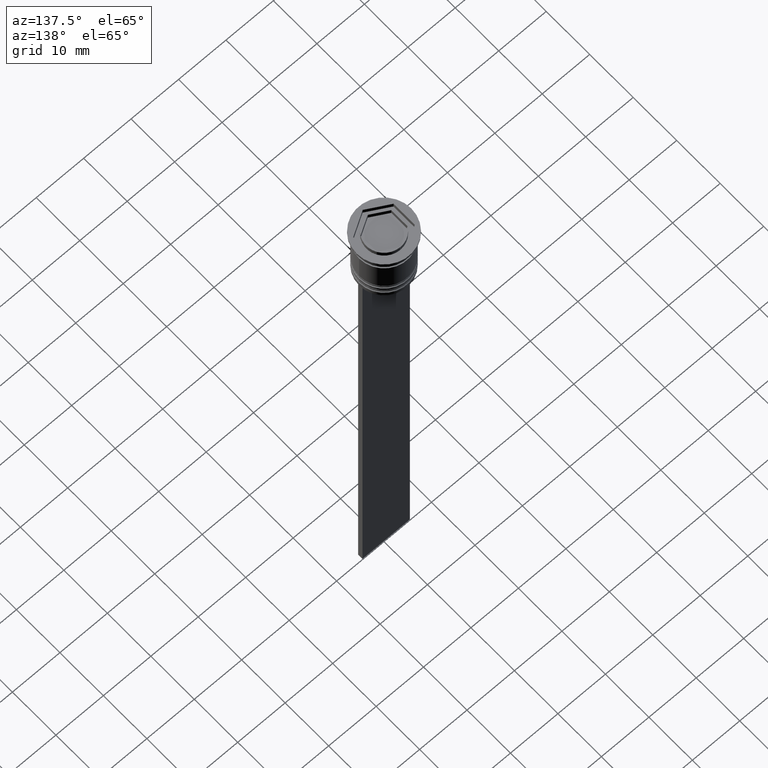
[diagram: clean part render]
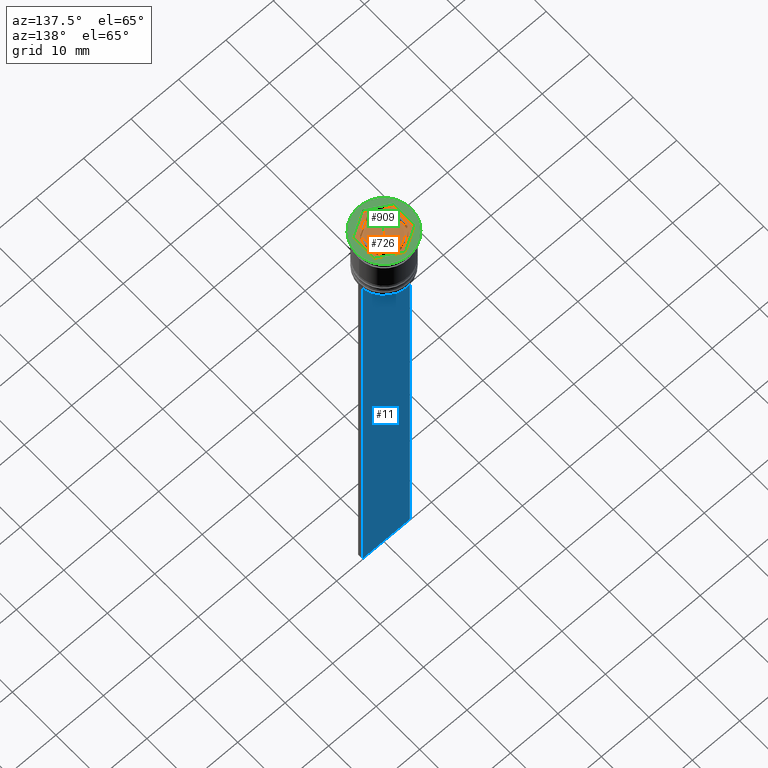
[diagram: same view with three faces highlighted in distinct colors, each labeled with its STEP entity id]
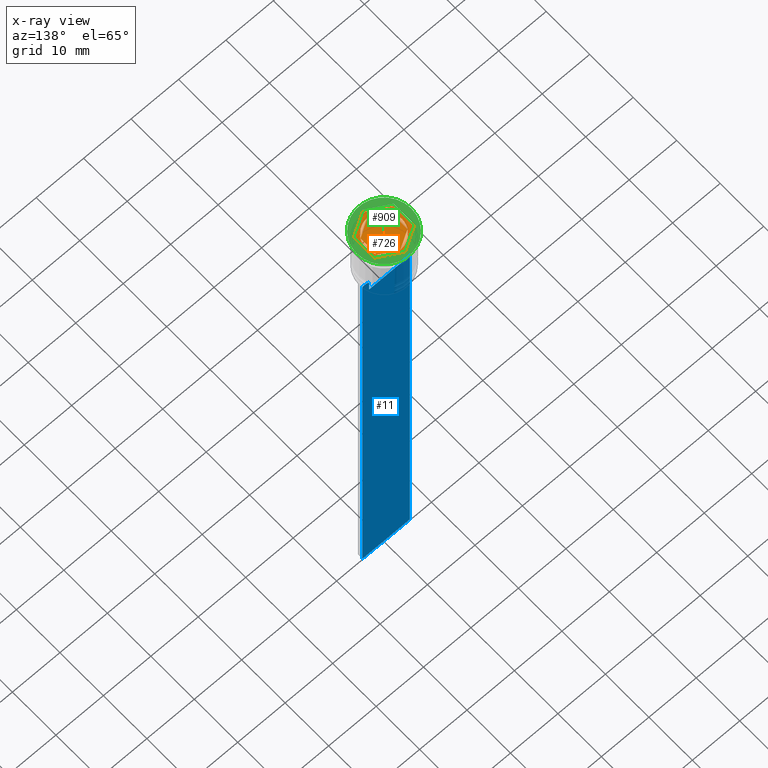
[diagram: x-ray of the same camera — body ghosted, the three highlighted faces saturated]
A machine part, auxiliary view with three faces highlighted in distinct colors.
The next image is the same camera in x-ray (body ghosted, the three faces saturated) — at least one of them is partly hidden behind the body in this view.
Their STEP definitions:

[orange] entity #726 — the highlighted planar face has unit normal (0, 0, 1).
#23 = ORIENTED_EDGE ( 'NONE', *, *, #2035, .F. ) ;
#24 = EDGE_CURVE ( 'NONE', #973, #1412, #470, .T. ) ;
#29 = LINE ( 'NONE', #361, #1232 ) ;
#39 = LINE ( 'NONE', #789, #2261 ) ;
#45 = ORIENTED_EDGE ( 'NONE', *, *, #507, .F. ) ;
#49 = VERTEX_POINT ( 'NONE', #1525 ) ;
#58 = ORIENTED_EDGE ( 'NONE', *, *, #247, .F. ) ;
#63 = AXIS2_PLACEMENT_3D ( 'NONE', #916, #370, #878 ) ;
#112 = VECTOR ( 'NONE', #2048, 1000.000000000000000 ) ;
#132 = DIRECTION ( 'NONE',  ( 1.000000000000000000, 0.000000000000000000, 0.000000000000000000 ) ) ;
#133 = EDGE_CURVE ( 'NONE', #315, #1789, #896, .T. ) ;
#166 = EDGE_CURVE ( 'NONE', #1122, #671, #698, .T. ) ;
#178 = DIRECTION ( 'NONE',  ( 1.000000000000000000, 0.000000000000000000, 0.000000000000000000 ) ) ;
#185 = EDGE_CURVE ( 'NONE', #1422, #49, #29, .T. ) ;
#203 = DIRECTION ( 'NONE',  ( -0.8660254037844385966, -0.4999999999999999445, 0.000000000000000000 ) ) ;
#210 = VERTEX_POINT ( 'NONE', #963 ) ;
#211 = FACE_BOUND ( 'NONE', #679, .T. ) ;
#212 = CIRCLE ( 'NONE', #2030, 3.750000000000000888 ) ;
#234 = CARTESIAN_POINT ( 'NONE',  ( 4.250000000000000000, 2.453738644055909912, -1.000000000000000000 ) ) ;
#240 = ORIENTED_EDGE ( 'NONE', *, *, #166, .F. ) ;
#247 = EDGE_CURVE ( 'NONE', #605, #1638, #212, .T. ) ;
#271 = ORIENTED_EDGE ( 'NONE', *, *, #185, .T. ) ;
#272 = LINE ( 'NONE', #1922, #1315 ) ;
#315 = VERTEX_POINT ( 'NONE', #627 ) ;
#345 = DIRECTION ( 'NONE',  ( 0.8660254037844385966, 0.5000000000000001110, 0.000000000000000000 ) ) ;
#361 = CARTESIAN_POINT ( 'NONE',  ( -4.250000000000000000, -2.453738644055909912, -1.000000000000000000 ) ) ;
#363 = CARTESIAN_POINT ( 'NONE',  ( 0.000000000000000000, 0.000000000000000000, -1.000000000000000000 ) ) ;
#370 = DIRECTION ( 'NONE',  ( 0.000000000000000000, 0.000000000000000000, 1.000000000000000000 ) ) ;
#398 = EDGE_CURVE ( 'NONE', #403, #956, #2086, .T. ) ;
#403 = VERTEX_POINT ( 'NONE', #467 ) ;
#436 = CARTESIAN_POINT ( 'NONE',  ( 0.000000000000000000, 0.000000000000000000, -1.000000000000000000 ) ) ;
#467 = CARTESIAN_POINT ( 'NONE',  ( 3.250000000000001332, 1.870828693386969777, -1.000000000000000888 ) ) ;
#468 = CARTESIAN_POINT ( 'NONE',  ( 0.000000000000000000, 0.000000000000000000, -1.000000000000000000 ) ) ;
#470 = LINE ( 'NONE', #2277, #1921 ) ;
#483 = CIRCLE ( 'NONE', #63, 3.750000000000000888 ) ;
#507 = EDGE_CURVE ( 'NONE', #659, #1669, #483, .T. ) ;
#516 = ORIENTED_EDGE ( 'NONE', *, *, #1251, .F. ) ;
#534 = CARTESIAN_POINT ( 'NONE',  ( -3.750000000000000888, 0.000000000000000000, -1.000000000000000000 ) ) ;
#555 = CARTESIAN_POINT ( 'NONE',  ( -4.250000000000000000, -2.453738644055909912, -1.000000000000000000 ) ) ;
#583 = DIRECTION ( 'NONE',  ( 1.000000000000000000, 0.000000000000000000, -0.000000000000000000 ) ) ;
#585 = CARTESIAN_POINT ( 'NONE',  ( -4.250000000000000000, 2.453738644055909468, -1.000000000000000000 ) ) ;
#603 = AXIS2_PLACEMENT_3D ( 'NONE', #972, #795, #178 ) ;
#605 = VERTEX_POINT ( 'NONE', #1649 ) ;
#627 = CARTESIAN_POINT ( 'NONE',  ( 0.000000000000000000, 4.907477288111818936, -1.000000000000000000 ) ) ;
#628 = DIRECTION ( 'NONE',  ( 0.8660254037844385966, 0.5000000000000001110, -0.000000000000000000 ) ) ;
#653 = EDGE_CURVE ( 'NONE', #1137, #315, #2253, .T. ) ;
#659 = VERTEX_POINT ( 'NONE', #1147 ) ;
#662 = ORIENTED_EDGE ( 'NONE', *, *, #398, .F. ) ;
#671 = VERTEX_POINT ( 'NONE', #1495 ) ;
#675 = EDGE_CURVE ( 'NONE', #1789, #1422, #39, .T. ) ;
#679 = EDGE_LOOP ( 'NONE', ( #58, #2089 ) ) ;
#692 = LINE ( 'NONE', #1790, #2225 ) ;
#698 = LINE ( 'NONE', #1270, #1690 ) ;
#716 = CARTESIAN_POINT ( 'NONE',  ( 3.249999999999999556, -1.870828693386972885, -1.000000000000000888 ) ) ;
#724 = CARTESIAN_POINT ( 'NONE',  ( -0.004814825398034979984, 3.749996908992911937, -1.000000000000000888 ) ) ;
#726 = ADVANCED_FACE ( 'NONE', ( #211, #1111, #927, #2219, #1661, #765, #1138 ), #755, .T. ) ;
#727 = ORIENTED_EDGE ( 'NONE', *, *, #2011, .F. ) ;
#754 = ORIENTED_EDGE ( 'NONE', *, *, #2155, .F. ) ;
#755 = PLANE ( 'NONE',  #2144 ) ;
#765 = FACE_BOUND ( 'NONE', #1725, .T. ) ;
#789 = CARTESIAN_POINT ( 'NONE',  ( -4.250000000000000000, 2.453738644055909468, -1.000000000000000000 ) ) ;
#795 = DIRECTION ( 'NONE',  ( 0.000000000000000000, 0.000000000000000000, 1.000000000000000000 ) ) ;
#808 = DIRECTION ( 'NONE',  ( -4.622506457652797323E-16, -1.000000000000000000, 0.000000000000000000 ) ) ;
#832 = CARTESIAN_POINT ( 'NONE',  ( 3.249999999999999556, -1.876388374866284403, -1.000000000000000888 ) ) ;
#841 = CARTESIAN_POINT ( 'NONE',  ( 3.245185174601965983, -1.879168215605940606, -1.000000000000000888 ) ) ;
#848 = DIRECTION ( 'NONE',  ( 0.000000000000000000, 0.000000000000000000, 1.000000000000000000 ) ) ;
#878 = DIRECTION ( 'NONE',  ( 1.000000000000000000, 0.000000000000000000, 0.000000000000000000 ) ) ;
#893 = CARTESIAN_POINT ( 'NONE',  ( 4.250000000000000000, -2.453738644055909912, -1.000000000000000000 ) ) ;
#895 = CIRCLE ( 'NONE', #603, 3.750000000000000888 ) ;
#896 = LINE ( 'NONE', #1650, #1193 ) ;
#916 = CARTESIAN_POINT ( 'NONE',  ( 0.000000000000000000, 0.000000000000000000, -1.000000000000000000 ) ) ;
#917 = ORIENTED_EDGE ( 'NONE', *, *, #675, .T. ) ;
#927 = FACE_BOUND ( 'NONE', #2202, .T. ) ;
#928 = CIRCLE ( 'NONE', #1811, 3.750000000000000888 ) ;
#945 = CARTESIAN_POINT ( 'NONE',  ( 0.000000000000000000, 0.000000000000000000, -1.000000000000000000 ) ) ;
#953 = CARTESIAN_POINT ( 'NONE',  ( -3.250000000000000444, 1.876388374866283515, -1.000000000000000888 ) ) ;
#954 = EDGE_CURVE ( 'NONE', #49, #1779, #692, .T. ) ;
#956 = VERTEX_POINT ( 'NONE', #716 ) ;
#963 = CARTESIAN_POINT ( 'NONE',  ( -3.245185174601965983, 1.879168215605940384, -1.000000000000000888 ) ) ;
#964 = DIRECTION ( 'NONE',  ( 0.000000000000000000, 0.000000000000000000, 1.000000000000000000 ) ) ;
#970 = ORIENTED_EDGE ( 'NONE', *, *, #2286, .F. ) ;
#972 = CARTESIAN_POINT ( 'NONE',  ( 0.000000000000000000, 0.000000000000000000, -1.000000000000000000 ) ) ;
#973 = VERTEX_POINT ( 'NONE', #1407 ) ;
#1010 = CARTESIAN_POINT ( 'NONE',  ( 4.250000000000000000, 2.453738644055909912, -1.000000000000000000 ) ) ;
#1023 = DIRECTION ( 'NONE',  ( 0.8660254037844387076, -0.4999999999999998890, 0.000000000000000000 ) ) ;
#1039 = VECTOR ( 'NONE', #808, 1000.000000000000000 ) ;
#1043 = EDGE_CURVE ( 'NONE', #1638, #605, #272, .T. ) ;
#1111 = FACE_BOUND ( 'NONE', #1978, .T. ) ;
#1122 = VERTEX_POINT ( 'NONE', #841 ) ;
#1126 = CARTESIAN_POINT ( 'NONE',  ( 0.000000000000000000, 0.000000000000000000, -1.000000000000000000 ) ) ;
#1137 = VERTEX_POINT ( 'NONE', #1010 ) ;
#1138 = FACE_OUTER_BOUND ( 'NONE', #1541, .T. ) ;
#1147 = CARTESIAN_POINT ( 'NONE',  ( -3.250000000000000444, 1.870828693386971331, -1.000000000000000888 ) ) ;
#1193 = VECTOR ( 'NONE', #1796, 999.9999999999998863 ) ;
#1210 = CARTESIAN_POINT ( 'NONE',  ( 0.000000000000000000, 0.000000000000000000, -1.000000000000000000 ) ) ;
#1232 = VECTOR ( 'NONE', #1993, 1000.000000000000000 ) ;
#1244 = DIRECTION ( 'NONE',  ( 0.000000000000000000, 0.000000000000000000, 1.000000000000000000 ) ) ;
#1251 = EDGE_CURVE ( 'NONE', #956, #403, #928, .T. ) ;
#1270 = CARTESIAN_POINT ( 'NONE',  ( -2.168404344971008868E-16, -3.752776749732567474, -1.000000000000000888 ) ) ;
#1281 = VERTEX_POINT ( 'NONE', #724 ) ;
#1315 = VECTOR ( 'NONE', #1023, 1000.000000000000000 ) ;
#1319 = DIRECTION ( 'NONE',  ( 0.000000000000000000, 0.000000000000000000, 1.000000000000000000 ) ) ;
#1345 = EDGE_LOOP ( 'NONE', ( #1434, #1517 ) ) ;
#1407 = CARTESIAN_POINT ( 'NONE',  ( -0.004814825398034979984, -3.749996908992911937, -1.000000000000000888 ) ) ;
#1412 = VERTEX_POINT ( 'NONE', #2031 ) ;
#1422 = VERTEX_POINT ( 'NONE', #555 ) ;
#1434 = ORIENTED_EDGE ( 'NONE', *, *, #1822, .F. ) ;
#1459 = VERTEX_POINT ( 'NONE', #1747 ) ;
#1484 = DIRECTION ( 'NONE',  ( 0.000000000000000000, -1.000000000000000000, 0.000000000000000000 ) ) ;
#1495 = CARTESIAN_POINT ( 'NONE',  ( 0.004814825398034546303, -3.749996908992911493, -1.000000000000000888 ) ) ;
#1517 = ORIENTED_EDGE ( 'NONE', *, *, #24, .F. ) ;
#1525 = CARTESIAN_POINT ( 'NONE',  ( 4.392932287340942424E-16, -4.907477288111819824, -1.000000000000000000 ) ) ;
#1532 = LINE ( 'NONE', #2257, #1551 ) ;
#1541 = EDGE_LOOP ( 'NONE', ( #1781, #1610, #917, #271, #1579, #1799 ) ) ;
#1549 = CIRCLE ( 'NONE', #2344, 3.750000000000000888 ) ;
#1551 = VECTOR ( 'NONE', #628, 1000.000000000000114 ) ;
#1560 = DIRECTION ( 'NONE',  ( -0.8660254037844385966, 0.5000000000000001110, 0.000000000000000000 ) ) ;
#1579 = ORIENTED_EDGE ( 'NONE', *, *, #954, .T. ) ;
#1610 = ORIENTED_EDGE ( 'NONE', *, *, #133, .T. ) ;
#1633 = DIRECTION ( 'NONE',  ( 0.000000000000000000, 0.000000000000000000, 1.000000000000000000 ) ) ;
#1638 = VERTEX_POINT ( 'NONE', #2165 ) ;
#1649 = CARTESIAN_POINT ( 'NONE',  ( 3.245185174601965095, 1.879168215605940828, -1.000000000000000888 ) ) ;
#1650 = CARTESIAN_POINT ( 'NONE',  ( 0.000000000000000000, 4.907477288111818936, -1.000000000000000000 ) ) ;
#1661 = FACE_BOUND ( 'NONE', #1775, .T. ) ;
#1662 = CIRCLE ( 'NONE', #2271, 3.750000000000000888 ) ;
#1669 = VERTEX_POINT ( 'NONE', #534 ) ;
#1686 = DIRECTION ( 'NONE',  ( 0.000000000000000000, 1.000000000000000000, 0.000000000000000000 ) ) ;
#1690 = VECTOR ( 'NONE', #203, 1000.000000000000114 ) ;
#1698 = DIRECTION ( 'NONE',  ( 1.000000000000000000, 0.000000000000000000, 0.000000000000000000 ) ) ;
#1704 = LINE ( 'NONE', #893, #112 ) ;
#1725 = EDGE_LOOP ( 'NONE', ( #754, #23 ) ) ;
#1747 = CARTESIAN_POINT ( 'NONE',  ( -3.250000000000000444, -1.870828693386971331, -1.000000000000000888 ) ) ;
#1775 = EDGE_LOOP ( 'NONE', ( #45, #1855, #727 ) ) ;
#1779 = VERTEX_POINT ( 'NONE', #2211 ) ;
#1781 = ORIENTED_EDGE ( 'NONE', *, *, #653, .T. ) ;
#1789 = VERTEX_POINT ( 'NONE', #585 ) ;
#1790 = CARTESIAN_POINT ( 'NONE',  ( 4.392932287340942424E-16, -4.907477288111819824, -1.000000000000000000 ) ) ;
#1796 = DIRECTION ( 'NONE',  ( -0.8660254037844387076, -0.4999999999999999445, 0.000000000000000000 ) ) ;
#1799 = ORIENTED_EDGE ( 'NONE', *, *, #2235, .T. ) ;
#1811 = AXIS2_PLACEMENT_3D ( 'NONE', #363, #848, #132 ) ;
#1822 = EDGE_CURVE ( 'NONE', #1412, #973, #1662, .T. ) ;
#1855 = ORIENTED_EDGE ( 'NONE', *, *, #1895, .F. ) ;
#1895 = EDGE_CURVE ( 'NONE', #1459, #659, #1911, .T. ) ;
#1911 = LINE ( 'NONE', #953, #1966 ) ;
#1921 = VECTOR ( 'NONE', #1560, 1000.000000000000114 ) ;
#1922 = CARTESIAN_POINT ( 'NONE',  ( 3.250000000000001332, 1.876388374866283959, -1.000000000000000888 ) ) ;
#1924 = DIRECTION ( 'NONE',  ( 1.000000000000000000, 0.000000000000000000, 0.000000000000000000 ) ) ;
#1966 = VECTOR ( 'NONE', #1686, 1000.000000000000000 ) ;
#1967 = AXIS2_PLACEMENT_3D ( 'NONE', #1210, #1244, #1924 ) ;
#1978 = EDGE_LOOP ( 'NONE', ( #516, #662 ) ) ;
#1993 = DIRECTION ( 'NONE',  ( 0.8660254037844387076, -0.4999999999999999445, 0.000000000000000000 ) ) ;
#2011 = EDGE_CURVE ( 'NONE', #1669, #1459, #1549, .T. ) ;
#2030 = AXIS2_PLACEMENT_3D ( 'NONE', #436, #1319, #2245 ) ;
#2031 = CARTESIAN_POINT ( 'NONE',  ( -3.245185174601965983, -1.879168215605940384, -1.000000000000000888 ) ) ;
#2035 = EDGE_CURVE ( 'NONE', #210, #1281, #1532, .T. ) ;
#2042 = CIRCLE ( 'NONE', #1967, 3.750000000000000888 ) ;
#2048 = DIRECTION ( 'NONE',  ( 0.000000000000000000, 1.000000000000000000, 0.000000000000000000 ) ) ;
#2086 = LINE ( 'NONE', #832, #1039 ) ;
#2089 = ORIENTED_EDGE ( 'NONE', *, *, #1043, .F. ) ;
#2144 = AXIS2_PLACEMENT_3D ( 'NONE', #1126, #2209, #583 ) ;
#2155 = EDGE_CURVE ( 'NONE', #1281, #210, #2042, .T. ) ;
#2165 = CARTESIAN_POINT ( 'NONE',  ( 0.004814825398034112622, 3.749996908992911493, -1.000000000000000888 ) ) ;
#2187 = VECTOR ( 'NONE', #2244, 1000.000000000000114 ) ;
#2200 = DIRECTION ( 'NONE',  ( 1.000000000000000000, 0.000000000000000000, 0.000000000000000000 ) ) ;
#2202 = EDGE_LOOP ( 'NONE', ( #970, #240 ) ) ;
#2209 = DIRECTION ( 'NONE',  ( 0.000000000000000000, 0.000000000000000000, 1.000000000000000000 ) ) ;
#2211 = CARTESIAN_POINT ( 'NONE',  ( 4.250000000000000000, -2.453738644055909912, -1.000000000000000000 ) ) ;
#2219 = FACE_BOUND ( 'NONE', #1345, .T. ) ;
#2225 = VECTOR ( 'NONE', #345, 1000.000000000000000 ) ;
#2235 = EDGE_CURVE ( 'NONE', #1779, #1137, #1704, .T. ) ;
#2244 = DIRECTION ( 'NONE',  ( -0.8660254037844387076, 0.4999999999999998335, 0.000000000000000000 ) ) ;
#2245 = DIRECTION ( 'NONE',  ( 1.000000000000000000, 0.000000000000000000, 0.000000000000000000 ) ) ;
#2253 = LINE ( 'NONE', #234, #2187 ) ;
#2257 = CARTESIAN_POINT ( 'NONE',  ( 0.000000000000000000, 3.752776749732567474, -1.000000000000000888 ) ) ;
#2261 = VECTOR ( 'NONE', #1484, 1000.000000000000000 ) ;
#2271 = AXIS2_PLACEMENT_3D ( 'NONE', #945, #1633, #2200 ) ;
#2277 = CARTESIAN_POINT ( 'NONE',  ( -3.250000000000000444, -1.876388374866283515, -1.000000000000000888 ) ) ;
#2286 = EDGE_CURVE ( 'NONE', #671, #1122, #895, .T. ) ;
#2344 = AXIS2_PLACEMENT_3D ( 'NONE', #468, #964, #1698 ) ;

[blue] entity #11 — the highlighted planar face has unit normal (0, -1, -0).
#3 = VERTEX_POINT ( 'NONE', #827 ) ;
#6 = LINE ( 'NONE', #718, #629 ) ;
#11 = ADVANCED_FACE ( 'NONE', ( #1199 ), #1713, .F. ) ;
#17 = CARTESIAN_POINT ( 'NONE',  ( -3.783746449387932920, 0.4999999999999991673, -12.83342999751715752 ) ) ;
#88 = CARTESIAN_POINT ( 'NONE',  ( 5.000000000000000000, 0.4999999999999991673, -2.450124378879110054 ) ) ;
#120 = EDGE_LOOP ( 'NONE', ( #915, #199, #358, #2040, #1999, #1395, #1229, #1264, #1839, #1660 ) ) ;
#121 = DIRECTION ( 'NONE',  ( 1.000000000000000000, 0.000000000000000000, 0.000000000000000000 ) ) ;
#129 = EDGE_CURVE ( 'NONE', #1188, #2136, #1618, .T. ) ;
#157 = CARTESIAN_POINT ( 'NONE',  ( 5.000000000000000000, 0.4999999999999991673, -112.5000000000000000 ) ) ;
#162 = DIRECTION ( 'NONE',  ( 1.000000000000000000, 0.000000000000000000, 0.000000000000000000 ) ) ;
#172 = CARTESIAN_POINT ( 'NONE',  ( -4.999999999999999112, 0.4999999999999991673, -112.5000000000000000 ) ) ;
#199 = ORIENTED_EDGE ( 'NONE', *, *, #550, .T. ) ;
#342 = CARTESIAN_POINT ( 'NONE',  ( -3.615591237958188042, 0.4999999999999991673, -13.00000000000000178 ) ) ;
#358 = ORIENTED_EDGE ( 'NONE', *, *, #129, .T. ) ;
#420 = CARTESIAN_POINT ( 'NONE',  ( 5.000000000000000000, 0.4999999999999991673, -2.450124378879110054 ) ) ;
#484 = DIRECTION ( 'NONE',  ( 0.000000000000000000, 0.000000000000000000, -1.000000000000000000 ) ) ;
#501 = CARTESIAN_POINT ( 'NONE',  ( 3.615591237958188042, 0.4999999999999991673, -13.00000000000000178 ) ) ;
#502 = CARTESIAN_POINT ( 'NONE',  ( 5.000000000000000000, 0.4999999999999991673, -12.50000000000000000 ) ) ;
#550 = EDGE_CURVE ( 'NONE', #3, #1188, #1426, .T. ) ;
#552 = CARTESIAN_POINT ( 'NONE',  ( -4.119769411022908834, 0.4999999999999991673, -12.50000000000000000 ) ) ;
#586 = DIRECTION ( 'NONE',  ( 0.000000000000000000, 0.000000000000000000, -1.000000000000000000 ) ) ;
#600 = VECTOR ( 'NONE', #907, 1000.000000000000000 ) ;
#617 = CARTESIAN_POINT ( 'NONE',  ( 3.615591237958188486, 0.4999999999999991673, -15.50000000000000000 ) ) ;
#620 = EDGE_CURVE ( 'NONE', #1598, #1406, #6, .T. ) ;
#629 = VECTOR ( 'NONE', #1450, 1000.000000000000000 ) ;
#718 = CARTESIAN_POINT ( 'NONE',  ( 3.615591237958188042, 0.4999999999999991673, 0.000000000000000000 ) ) ;
#722 = LINE ( 'NONE', #1454, #600 ) ;
#731 = CARTESIAN_POINT ( 'NONE',  ( -3.615591237958188042, 0.4999999999999991673, -13.00000000000000178 ) ) ;
#768 = LINE ( 'NONE', #1455, #1773 ) ;
#794 = DIRECTION ( 'NONE',  ( 0.000000000000000000, -1.000000000000000000, -0.000000000000000000 ) ) ;
#827 = CARTESIAN_POINT ( 'NONE',  ( -4.119769411022908834, 0.4999999999999991673, -12.50000000000000000 ) ) ;
#830 = EDGE_CURVE ( 'NONE', #1406, #875, #1018, .T. ) ;
#875 = VERTEX_POINT ( 'NONE', #1070 ) ;
#901 = VERTEX_POINT ( 'NONE', #172 ) ;
#906 = CARTESIAN_POINT ( 'NONE',  ( -3.615591237958188042, 0.4999999999999991673, 0.000000000000000000 ) ) ;
#907 = DIRECTION ( 'NONE',  ( 1.000000000000000000, 0.000000000000000000, 0.000000000000000000 ) ) ;
#915 = ORIENTED_EDGE ( 'NONE', *, *, #968, .T. ) ;
#968 = EDGE_CURVE ( 'NONE', #1085, #3, #1647, .T. ) ;
#1018 = B_SPLINE_CURVE_WITH_KNOTS ( 'NONE', 3,
 ( #501, #2266, #1216, #1944 ),
 .UNSPECIFIED., .F., .F.,
 ( 4, 4 ),
 ( 0.01745179617248911533, 0.01816207215777259493 ),
 .UNSPECIFIED. ) ;
#1028 = CARTESIAN_POINT ( 'NONE',  ( 5.000000000000000000, 0.4999999999999991673, -112.5000000000000000 ) ) ;
#1056 = LINE ( 'NONE', #1028, #1963 ) ;
#1070 = CARTESIAN_POINT ( 'NONE',  ( 4.119769411022908834, 0.4999999999999991673, -12.50000000000000000 ) ) ;
#1080 = VECTOR ( 'NONE', #1286, 1000.000000000000000 ) ;
#1085 = VERTEX_POINT ( 'NONE', #1945 ) ;
#1123 = VERTEX_POINT ( 'NONE', #502 ) ;
#1188 = VERTEX_POINT ( 'NONE', #342 ) ;
#1199 = FACE_OUTER_BOUND ( 'NONE', #120, .T. ) ;
#1216 = CARTESIAN_POINT ( 'NONE',  ( 3.951794168112527927, 0.4999999999999991673, -12.66675163073525923 ) ) ;
#1229 = ORIENTED_EDGE ( 'NONE', *, *, #1862, .T. ) ;
#1249 = EDGE_CURVE ( 'NONE', #2068, #901, #1056, .T. ) ;
#1264 = ORIENTED_EDGE ( 'NONE', *, *, #1339, .T. ) ;
#1286 = DIRECTION ( 'NONE',  ( 0.000000000000000000, 0.000000000000000000, -1.000000000000000000 ) ) ;
#1339 = EDGE_CURVE ( 'NONE', #1123, #2068, #2020, .T. ) ;
#1389 = CARTESIAN_POINT ( 'NONE',  ( -3.615591237958188486, 0.4999999999999991673, -15.50000000000000000 ) ) ;
#1395 = ORIENTED_EDGE ( 'NONE', *, *, #830, .T. ) ;
#1406 = VERTEX_POINT ( 'NONE', #1861 ) ;
#1409 = EDGE_CURVE ( 'NONE', #1085, #901, #768, .T. ) ;
#1426 = B_SPLINE_CURVE_WITH_KNOTS ( 'NONE', 3,
 ( #552, #2005, #17, #731 ),
 .UNSPECIFIED., .F., .F.,
 ( 4, 4 ),
 ( 0.007067514914986626831, 0.007777582239375527978 ),
 .UNSPECIFIED. ) ;
#1428 = CARTESIAN_POINT ( 'NONE',  ( 0.000000000000000000, 0.4999999999999991673, -15.50000000000000000 ) ) ;
#1450 = DIRECTION ( 'NONE',  ( -0.000000000000000000, -0.000000000000000000, 1.000000000000000000 ) ) ;
#1454 = CARTESIAN_POINT ( 'NONE',  ( 5.000000000000000000, 0.4999999999999991673, -12.50000000000000000 ) ) ;
#1455 = CARTESIAN_POINT ( 'NONE',  ( -4.999999999999999112, 0.4999999999999991673, -2.450124378879110054 ) ) ;
#1580 = LINE ( 'NONE', #1428, #2342 ) ;
#1598 = VERTEX_POINT ( 'NONE', #617 ) ;
#1605 = EDGE_CURVE ( 'NONE', #2136, #1598, #1580, .T. ) ;
#1618 = LINE ( 'NONE', #906, #1080 ) ;
#1647 = LINE ( 'NONE', #2141, #2147 ) ;
#1660 = ORIENTED_EDGE ( 'NONE', *, *, #1409, .F. ) ;
#1713 = PLANE ( 'NONE',  #1852 ) ;
#1773 = VECTOR ( 'NONE', #1845, 1000.000000000000000 ) ;
#1839 = ORIENTED_EDGE ( 'NONE', *, *, #1249, .T. ) ;
#1845 = DIRECTION ( 'NONE',  ( 0.000000000000000000, 0.000000000000000000, -1.000000000000000000 ) ) ;
#1852 = AXIS2_PLACEMENT_3D ( 'NONE', #88, #794, #484 ) ;
#1861 = CARTESIAN_POINT ( 'NONE',  ( 3.615591237958188042, 0.4999999999999991673, -13.00000000000000178 ) ) ;
#1862 = EDGE_CURVE ( 'NONE', #875, #1123, #722, .T. ) ;
#1944 = CARTESIAN_POINT ( 'NONE',  ( 4.119769411022908834, 0.4999999999999991673, -12.50000000000000000 ) ) ;
#1945 = CARTESIAN_POINT ( 'NONE',  ( -4.999999999999999112, 0.4999999999999993339, -12.50000000000000000 ) ) ;
#1963 = VECTOR ( 'NONE', #2343, 1000.000000000000000 ) ;
#1999 = ORIENTED_EDGE ( 'NONE', *, *, #620, .T. ) ;
#2005 = CARTESIAN_POINT ( 'NONE',  ( -3.951794205566887985, 0.4999999999999991673, -12.66675159355373737 ) ) ;
#2020 = LINE ( 'NONE', #420, #2304 ) ;
#2040 = ORIENTED_EDGE ( 'NONE', *, *, #1605, .T. ) ;
#2068 = VERTEX_POINT ( 'NONE', #157 ) ;
#2136 = VERTEX_POINT ( 'NONE', #1389 ) ;
#2141 = CARTESIAN_POINT ( 'NONE',  ( 5.000000000000000000, 0.4999999999999991673, -12.50000000000000000 ) ) ;
#2147 = VECTOR ( 'NONE', #162, 1000.000000000000000 ) ;
#2266 = CARTESIAN_POINT ( 'NONE',  ( 3.783746406711540722, 0.4999999999999991673, -12.83343003979123509 ) ) ;
#2304 = VECTOR ( 'NONE', #586, 1000.000000000000000 ) ;
#2342 = VECTOR ( 'NONE', #121, 1000.000000000000000 ) ;
#2343 = DIRECTION ( 'NONE',  ( -1.000000000000000000, 0.000000000000000000, 0.000000000000000000 ) ) ;

[green] entity #909 — the highlighted planar face has unit normal (0, -0, 1).
#2 = FACE_BOUND ( 'NONE', #1143, .T. ) ;
#65 = VECTOR ( 'NONE', #464, 1000.000000000000000 ) ;
#82 = ORIENTED_EDGE ( 'NONE', *, *, #851, .F. ) ;
#104 = ORIENTED_EDGE ( 'NONE', *, *, #408, .F. ) ;
#180 = EDGE_CURVE ( 'NONE', #674, #1107, #721, .T. ) ;
#319 = CARTESIAN_POINT ( 'NONE',  ( -4.250000000000000000, -2.453738644055909912, 0.000000000000000000 ) ) ;
#341 = VECTOR ( 'NONE', #665, 999.9999999999998863 ) ;
#365 = CARTESIAN_POINT ( 'NONE',  ( 4.392932287340942424E-16, -4.907477288111819824, 0.000000000000000000 ) ) ;
#408 = EDGE_CURVE ( 'NONE', #887, #1837, #1379, .T. ) ;
#455 = CARTESIAN_POINT ( 'NONE',  ( 4.250000000000000000, 2.453738644055909912, 0.000000000000000000 ) ) ;
#464 = DIRECTION ( 'NONE',  ( 0.000000000000000000, -1.000000000000000000, 0.000000000000000000 ) ) ;
#486 = ORIENTED_EDGE ( 'NONE', *, *, #180, .F. ) ;
#494 = CARTESIAN_POINT ( 'NONE',  ( -5.750000000000000000, 7.041719095097280880E-16, 0.000000000000000000 ) ) ;
#505 = CARTESIAN_POINT ( 'NONE',  ( 0.000000000000000000, 4.907477288111818936, 0.000000000000000000 ) ) ;
#515 = CARTESIAN_POINT ( 'NONE',  ( 0.000000000000000000, 0.000000000000000000, 0.000000000000000000 ) ) ;
#582 = VERTEX_POINT ( 'NONE', #2325 ) ;
#643 = CARTESIAN_POINT ( 'NONE',  ( -4.250000000000000000, 2.453738644055909468, 0.000000000000000000 ) ) ;
#665 = DIRECTION ( 'NONE',  ( -0.8660254037844387076, -0.4999999999999999445, 0.000000000000000000 ) ) ;
#669 = AXIS2_PLACEMENT_3D ( 'NONE', #1977, #1448, #902 ) ;
#674 = VERTEX_POINT ( 'NONE', #773 ) ;
#721 = LINE ( 'NONE', #1112, #1916 ) ;
#773 = CARTESIAN_POINT ( 'NONE',  ( 4.250000000000000000, -2.453738644055909912, 0.000000000000000000 ) ) ;
#825 = EDGE_CURVE ( 'NONE', #1107, #1793, #840, .T. ) ;
#840 = LINE ( 'NONE', #2299, #1391 ) ;
#851 = EDGE_CURVE ( 'NONE', #1976, #887, #1366, .T. ) ;
#855 = ORIENTED_EDGE ( 'NONE', *, *, #2126, .F. ) ;
#867 = EDGE_CURVE ( 'NONE', #1837, #674, #1726, .T. ) ;
#870 = DIRECTION ( 'NONE',  ( -0.000000000000000000, -0.000000000000000000, 1.000000000000000000 ) ) ;
#879 = DIRECTION ( 'NONE',  ( 1.000000000000000000, 0.000000000000000000, 0.000000000000000000 ) ) ;
#887 = VERTEX_POINT ( 'NONE', #1627 ) ;
#902 = DIRECTION ( 'NONE',  ( 1.000000000000000000, 0.000000000000000000, 0.000000000000000000 ) ) ;
#904 = ORIENTED_EDGE ( 'NONE', *, *, #2099, .T. ) ;
#909 = ADVANCED_FACE ( 'NONE', ( #2, #1227 ), #913, .T. ) ;
#913 = PLANE ( 'NONE',  #669 ) ;
#941 = ORIENTED_EDGE ( 'NONE', *, *, #825, .F. ) ;
#959 = ORIENTED_EDGE ( 'NONE', *, *, #867, .F. ) ;
#1046 = CIRCLE ( 'NONE', #1624, 5.750000000000000000 ) ;
#1047 = DIRECTION ( 'NONE',  ( 0.8660254037844385966, 0.5000000000000001110, 0.000000000000000000 ) ) ;
#1107 = VERTEX_POINT ( 'NONE', #455 ) ;
#1112 = CARTESIAN_POINT ( 'NONE',  ( 4.250000000000000000, -2.453738644055909912, 0.000000000000000000 ) ) ;
#1132 = DIRECTION ( 'NONE',  ( 1.000000000000000000, 0.000000000000000000, 0.000000000000000000 ) ) ;
#1143 = EDGE_LOOP ( 'NONE', ( #941, #486, #959, #104, #82, #855 ) ) ;
#1227 = FACE_OUTER_BOUND ( 'NONE', #2002, .T. ) ;
#1287 = CARTESIAN_POINT ( 'NONE',  ( 0.000000000000000000, 4.907477288111818936, 0.000000000000000000 ) ) ;
#1326 = EDGE_CURVE ( 'NONE', #2066, #582, #1046, .T. ) ;
#1344 = VECTOR ( 'NONE', #2096, 1000.000000000000000 ) ;
#1366 = LINE ( 'NONE', #2084, #65 ) ;
#1379 = LINE ( 'NONE', #319, #1344 ) ;
#1391 = VECTOR ( 'NONE', #1398, 1000.000000000000114 ) ;
#1398 = DIRECTION ( 'NONE',  ( -0.8660254037844387076, 0.4999999999999998335, 0.000000000000000000 ) ) ;
#1424 = LINE ( 'NONE', #505, #341 ) ;
#1448 = DIRECTION ( 'NONE',  ( 0.000000000000000000, -0.000000000000000000, 1.000000000000000000 ) ) ;
#1478 = CARTESIAN_POINT ( 'NONE',  ( 4.392932287340942424E-16, -4.907477288111819824, 0.000000000000000000 ) ) ;
#1489 = CARTESIAN_POINT ( 'NONE',  ( 0.000000000000000000, 0.000000000000000000, 0.000000000000000000 ) ) ;
#1624 = AXIS2_PLACEMENT_3D ( 'NONE', #1489, #2012, #1132 ) ;
#1627 = CARTESIAN_POINT ( 'NONE',  ( -4.250000000000000000, -2.453738644055909912, 0.000000000000000000 ) ) ;
#1683 = ORIENTED_EDGE ( 'NONE', *, *, #1326, .T. ) ;
#1726 = LINE ( 'NONE', #365, #1848 ) ;
#1793 = VERTEX_POINT ( 'NONE', #1287 ) ;
#1837 = VERTEX_POINT ( 'NONE', #1478 ) ;
#1848 = VECTOR ( 'NONE', #1047, 1000.000000000000000 ) ;
#1916 = VECTOR ( 'NONE', #2008, 1000.000000000000000 ) ;
#1976 = VERTEX_POINT ( 'NONE', #643 ) ;
#1977 = CARTESIAN_POINT ( 'NONE',  ( 0.000000000000000000, 0.000000000000000000, 0.000000000000000000 ) ) ;
#2002 = EDGE_LOOP ( 'NONE', ( #904, #1683 ) ) ;
#2003 = AXIS2_PLACEMENT_3D ( 'NONE', #515, #870, #879 ) ;
#2008 = DIRECTION ( 'NONE',  ( 0.000000000000000000, 1.000000000000000000, 0.000000000000000000 ) ) ;
#2012 = DIRECTION ( 'NONE',  ( -0.000000000000000000, -0.000000000000000000, 1.000000000000000000 ) ) ;
#2066 = VERTEX_POINT ( 'NONE', #494 ) ;
#2084 = CARTESIAN_POINT ( 'NONE',  ( -4.250000000000000000, 2.453738644055909468, 0.000000000000000000 ) ) ;
#2096 = DIRECTION ( 'NONE',  ( 0.8660254037844387076, -0.4999999999999999445, 0.000000000000000000 ) ) ;
#2099 = EDGE_CURVE ( 'NONE', #582, #2066, #2195, .T. ) ;
#2126 = EDGE_CURVE ( 'NONE', #1793, #1976, #1424, .T. ) ;
#2195 = CIRCLE ( 'NONE', #2003, 5.750000000000000000 ) ;
#2299 = CARTESIAN_POINT ( 'NONE',  ( 4.250000000000000000, 2.453738644055909912, 0.000000000000000000 ) ) ;
#2325 = CARTESIAN_POINT ( 'NONE',  ( 5.750000000000000000, 0.000000000000000000, 0.000000000000000000 ) ) ;